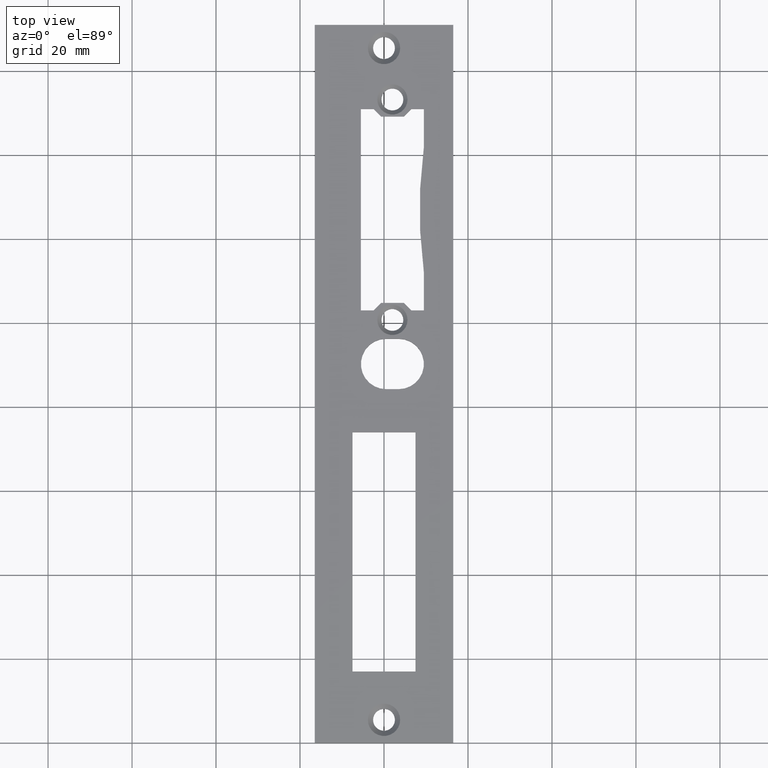
[diagram: clean part render]
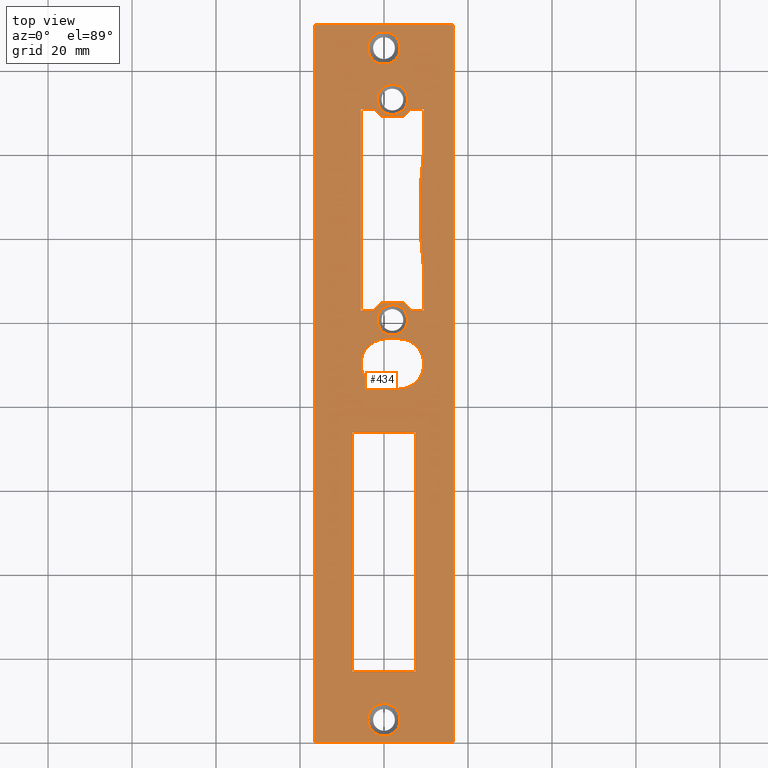
[diagram: same view with one face highlighted and labeled with its STEP entity id]
A machine part, top view. The second image highlights one B-rep face of the part: STEP entity #434.
In plain terms, the highlighted planar face has unit normal (-0, 0, 1).
Its self-contained STEP definition (entity closure, byte-faithful):
#11 = VERTEX_POINT ( 'NONE', #2658 ) ;
#13 = ORIENTED_EDGE ( 'NONE', *, *, #502, .F. ) ;
#31 = CARTESIAN_POINT ( 'NONE',  ( 3.850000000000000089, 165.5000000000000000, 3.000000000000000888 ) ) ;
#39 = DIRECTION ( 'NONE',  ( 1.000000000000000000, 0.000000000000000000, 0.000000000000000000 ) ) ;
#74 = CARTESIAN_POINT ( 'NONE',  ( 6.500000000000020428, 102.9999999999999858, 3.000000000000000888 ) ) ;
#150 = LINE ( 'NONE', #260, #8252 ) ;
#245 = VERTEX_POINT ( 'NONE', #9052 ) ;
#253 = EDGE_LOOP ( 'NONE', ( #3964 ) ) ;
#260 = CARTESIAN_POINT ( 'NONE',  ( 0.000000000000000000, 102.9999999999999858, 3.000000000000000888 ) ) ;
#261 = CARTESIAN_POINT ( 'NONE',  ( 9.500000000000019540, 0.000000000000000000, 3.000000000000000888 ) ) ;
#296 = CARTESIAN_POINT ( 'NONE',  ( 0.000000000000000000, 17.00000000000000000, 3.000000000000000888 ) ) ;
#326 = VECTOR ( 'NONE', #5329, 1000.000000000000000 ) ;
#350 = EDGE_LOOP ( 'NONE', ( #553, #4392, #7611, #6324 ) ) ;
#418 = EDGE_CURVE ( 'NONE', #7979, #7979, #897, .T. ) ;
#422 = CARTESIAN_POINT ( 'NONE',  ( 54.74999999999999289, 54.74999999999999289, 3.000000000000000888 ) ) ;
#427 = CARTESIAN_POINT ( 'NONE',  ( 4.700000000000023270, 104.7999999999999687, 3.000000000000000888 ) ) ;
#434 = ADVANCED_FACE ( 'NONE', ( #1680, #4399, #466, #4513, #3410, #6207, #4304, #5773 ), #3907, .T. ) ;
#438 = LINE ( 'NONE', #7629, #5947 ) ;
#462 = DIRECTION ( 'NONE',  ( -0.000000000000000000, 0.000000000000000000, 1.000000000000000000 ) ) ;
#466 = FACE_BOUND ( 'NONE', #253, .T. ) ;
#483 = ORIENTED_EDGE ( 'NONE', *, *, #2848, .F. ) ;
#492 = CARTESIAN_POINT ( 'NONE',  ( 0.000000000000000000, 96.24999999999998579, 3.000000000000000888 ) ) ;
#502 = EDGE_CURVE ( 'NONE', #8906, #1313, #8886, .T. ) ;
#508 = EDGE_CURVE ( 'NONE', #9221, #7424, #7430, .T. ) ;
#519 = CARTESIAN_POINT ( 'NONE',  ( -0.7000000000000061728, 149.2000000000000171, 3.000000000000000888 ) ) ;
#530 = CARTESIAN_POINT ( 'NONE',  ( 3.500000000000017319, 84.25000000000000000, 3.000000000000000888 ) ) ;
#553 = ORIENTED_EDGE ( 'NONE', *, *, #4359, .F. ) ;
#576 = LINE ( 'NONE', #4905, #8901 ) ;
#580 = DIRECTION ( 'NONE',  ( -1.217349807703023841E-16, 1.000000000000000000, 0.000000000000000000 ) ) ;
#606 = LINE ( 'NONE', #2653, #5686 ) ;
#655 = ORIENTED_EDGE ( 'NONE', *, *, #2166, .F. ) ;
#769 = LINE ( 'NONE', #6012, #326 ) ;
#829 = ORIENTED_EDGE ( 'NONE', *, *, #418, .T. ) ;
#831 = LINE ( 'NONE', #422, #1724 ) ;
#859 = DIRECTION ( 'NONE',  ( -0.000000000000000000, 0.000000000000000000, 1.000000000000000000 ) ) ;
#875 = ORIENTED_EDGE ( 'NONE', *, *, #1436, .F. ) ;
#883 = CARTESIAN_POINT ( 'NONE',  ( 7.500000000000007105, 17.00000000000000000, 3.000000000000000888 ) ) ;
#897 = CIRCLE ( 'NONE', #5338, 3.600000000000020073 ) ;
#1023 = LINE ( 'NONE', #6942, #5556 ) ;
#1130 = VERTEX_POINT ( 'NONE', #3932 ) ;
#1132 = VECTOR ( 'NONE', #6288, 1000.000000000000000 ) ;
#1133 = CARTESIAN_POINT ( 'NONE',  ( 0.5000000000000242029, 84.25000000000000000, 3.000000000000000888 ) ) ;
#1183 = EDGE_LOOP ( 'NONE', ( #8100, #2125, #7181, #6103, #6462, #5200, #4059, #655, #6175, #2666, #4161, #2736, #875, #7445 ) ) ;
#1313 = VERTEX_POINT ( 'NONE', #530 ) ;
#1320 = VERTEX_POINT ( 'NONE', #5473 ) ;
#1356 = VERTEX_POINT ( 'NONE', #3508 ) ;
#1362 = VERTEX_POINT ( 'NONE', #5643 ) ;
#1421 = CARTESIAN_POINT ( 'NONE',  ( 4.700000000000024158, 149.2000000000000171, 3.000000000000000888 ) ) ;
#1436 = EDGE_CURVE ( 'NONE', #3812, #8427, #831, .T. ) ;
#1459 = CARTESIAN_POINT ( 'NONE',  ( 3.850000000000040945, 5.500000000000000000, 3.000000000000000888 ) ) ;
#1481 = ORIENTED_EDGE ( 'NONE', *, *, #7029, .F. ) ;
#1572 = DIRECTION ( 'NONE',  ( -1.000000000000000000, 0.000000000000000000, 0.000000000000000000 ) ) ;
#1680 = FACE_BOUND ( 'NONE', #8549, .T. ) ;
#1702 = VECTOR ( 'NONE', #8629, 1000.000000000000000 ) ;
#1724 = VECTOR ( 'NONE', #1926, 1000.000000000000114 ) ;
#1763 = VERTEX_POINT ( 'NONE', #2857 ) ;
#1797 = LINE ( 'NONE', #2796, #1132 ) ;
#1804 = EDGE_CURVE ( 'NONE', #9228, #9228, #6129, .T. ) ;
#1827 = DIRECTION ( 'NONE',  ( -0.000000000000000000, 0.000000000000000000, 1.000000000000000000 ) ) ;
#1846 = EDGE_CURVE ( 'NONE', #8427, #5043, #150, .T. ) ;
#1866 = VERTEX_POINT ( 'NONE', #4504 ) ;
#1926 = DIRECTION ( 'NONE',  ( 0.7071067811865474617, -0.7071067811865474617, 0.000000000000000000 ) ) ;
#1937 = VECTOR ( 'NONE', #4128, 1000.000000000000000 ) ;
#1954 = DIRECTION ( 'NONE',  ( -0.7071067811865474617, 0.7071067811865474617, 0.000000000000000000 ) ) ;
#1982 = CARTESIAN_POINT ( 'NONE',  ( 16.50000000000000000, -2.008627182709986664E-15, 3.000000000000000888 ) ) ;
#1998 = VERTEX_POINT ( 'NONE', #5396 ) ;
#2050 = VECTOR ( 'NONE', #6145, 1000.000000000000000 ) ;
#2125 = ORIENTED_EDGE ( 'NONE', *, *, #6898, .F. ) ;
#2166 = EDGE_CURVE ( 'NONE', #1866, #8467, #5694, .T. ) ;
#2188 = CARTESIAN_POINT ( 'NONE',  ( 5.600000000000040501, 100.7500000000000000, 3.000000000000000888 ) ) ;
#2244 = VECTOR ( 'NONE', #3332, 1000.000000000000000 ) ;
#2297 = VECTOR ( 'NONE', #3483, 1000.000000000000114 ) ;
#2319 = DIRECTION ( 'NONE',  ( -1.000000000000000000, 0.000000000000000000, 0.000000000000000000 ) ) ;
#2355 = CARTESIAN_POINT ( 'NONE',  ( 0.000000000000000000, 151.0000000000000284, 3.000000000000000888 ) ) ;
#2445 = VERTEX_POINT ( 'NONE', #1459 ) ;
#2531 = ORIENTED_EDGE ( 'NONE', *, *, #5019, .T. ) ;
#2555 = CARTESIAN_POINT ( 'NONE',  ( 2.000000000000020872, 153.2500000000000000, 3.000000000000000888 ) ) ;
#2593 = CARTESIAN_POINT ( 'NONE',  ( 3.500000000000014655, 90.25000000000001421, 3.000000000000000888 ) ) ;
#2635 = DIRECTION ( 'NONE',  ( -1.217349807703023841E-16, -1.000000000000000000, 0.000000000000000000 ) ) ;
#2645 = CARTESIAN_POINT ( 'NONE',  ( -52.74999999999997158, 52.74999999999997158, 3.000000000000000888 ) ) ;
#2648 = AXIS2_PLACEMENT_3D ( 'NONE', #2555, #3994, #4671 ) ;
#2653 = CARTESIAN_POINT ( 'NONE',  ( 7.500000000000007994, 9.130123557772689781E-16, 3.000000000000000888 ) ) ;
#2658 = CARTESIAN_POINT ( 'NONE',  ( -5.499999999999980460, 151.0000000000000284, 3.000000000000000888 ) ) ;
#2666 = ORIENTED_EDGE ( 'NONE', *, *, #5717, .T. ) ;
#2736 = ORIENTED_EDGE ( 'NONE', *, *, #1846, .F. ) ;
#2796 = CARTESIAN_POINT ( 'NONE',  ( 0.000000000000000000, 171.0000000000000000, 3.000000000000000888 ) ) ;
#2811 = CARTESIAN_POINT ( 'NONE',  ( 121.5000000000008953, 127.0000000000000000, 3.000000000000000888 ) ) ;
#2848 = EDGE_CURVE ( 'NONE', #5071, #8906, #5332, .T. ) ;
#2857 = CARTESIAN_POINT ( 'NONE',  ( -2.499999999999978684, 151.0000000000000284, 3.000000000000000888 ) ) ;
#2868 = EDGE_CURVE ( 'NONE', #8465, #3128, #6002, .T. ) ;
#3023 = ORIENTED_EDGE ( 'NONE', *, *, #4538, .T. ) ;
#3089 = EDGE_CURVE ( 'NONE', #8467, #8465, #6676, .T. ) ;
#3093 = DIRECTION ( 'NONE',  ( 1.000000000000000000, 0.000000000000000000, 0.000000000000000000 ) ) ;
#3128 = VERTEX_POINT ( 'NONE', #519 ) ;
#3131 = CARTESIAN_POINT ( 'NONE',  ( 5.600000000000027178, 153.2500000000000000, 3.000000000000000888 ) ) ;
#3138 = EDGE_CURVE ( 'NONE', #8540, #9221, #606, .T. ) ;
#3332 = DIRECTION ( 'NONE',  ( -1.000000000000000000, 0.000000000000000000, 0.000000000000000000 ) ) ;
#3340 = DIRECTION ( 'NONE',  ( 1.000000000000000000, 0.000000000000000000, 0.000000000000000000 ) ) ;
#3362 = CARTESIAN_POINT ( 'NONE',  ( 0.000000000000000000, 73.99999999999994316, 3.000000000000000888 ) ) ;
#3410 = FACE_BOUND ( 'NONE', #3630, .T. ) ;
#3415 = CARTESIAN_POINT ( 'NONE',  ( 0.5000000000000258682, 90.25000000000001421, 3.000000000000000888 ) ) ;
#3434 = AXIS2_PLACEMENT_3D ( 'NONE', #3582, #5255, #3093 ) ;
#3483 = DIRECTION ( 'NONE',  ( 0.7071067811865474617, 0.7071067811865474617, 0.000000000000000000 ) ) ;
#3508 = CARTESIAN_POINT ( 'NONE',  ( -0.6999999999999825251, 104.7999999999999829, 3.000000000000000888 ) ) ;
#3515 = VECTOR ( 'NONE', #5018, 1000.000000000000000 ) ;
#3563 = CARTESIAN_POINT ( 'NONE',  ( 0.000000000000000000, 102.9999999999999858, 3.000000000000000888 ) ) ;
#3582 = CARTESIAN_POINT ( 'NONE',  ( -1.994931997373328159E-14, 165.5000000000000000, 3.000000000000000888 ) ) ;
#3630 = EDGE_LOOP ( 'NONE', ( #1481, #13, #483, #2531 ) ) ;
#3663 = VECTOR ( 'NONE', #1572, 1000.000000000000000 ) ;
#3666 = CARTESIAN_POINT ( 'NONE',  ( 9.500000000000014211, 142.0000000000000284, 3.000000000000000888 ) ) ;
#3702 = VERTEX_POINT ( 'NONE', #6001 ) ;
#3766 = CARTESIAN_POINT ( 'NONE',  ( 0.000000000000000000, 151.0000000000000284, 3.000000000000000888 ) ) ;
#3812 = VERTEX_POINT ( 'NONE', #427 ) ;
#3815 = EDGE_LOOP ( 'NONE', ( #5840 ) ) ;
#3835 = CIRCLE ( 'NONE', #8167, 3.850000000000020073 ) ;
#3877 = EDGE_CURVE ( 'NONE', #8760, #1356, #4557, .T. ) ;
#3907 = PLANE ( 'NONE',  #6313 ) ;
#3932 = CARTESIAN_POINT ( 'NONE',  ( -5.499999999999978684, 102.9999999999999858, 3.000000000000000888 ) ) ;
#3964 = ORIENTED_EDGE ( 'NONE', *, *, #6468, .T. ) ;
#3994 = DIRECTION ( 'NONE',  ( 0.000000000000000000, -0.000000000000000000, -1.000000000000000000 ) ) ;
#4059 = ORIENTED_EDGE ( 'NONE', *, *, #3089, .F. ) ;
#4072 = EDGE_CURVE ( 'NONE', #11, #1130, #7700, .T. ) ;
#4128 = DIRECTION ( 'NONE',  ( 1.217349807703022362E-16, 1.000000000000000000, 0.000000000000000000 ) ) ;
#4161 = ORIENTED_EDGE ( 'NONE', *, *, #7494, .F. ) ;
#4193 = VECTOR ( 'NONE', #4869, 1000.000000000000000 ) ;
#4232 = AXIS2_PLACEMENT_3D ( 'NONE', #2593, #462, #3340 ) ;
#4304 = FACE_BOUND ( 'NONE', #1183, .T. ) ;
#4327 = CARTESIAN_POINT ( 'NONE',  ( -5.499999999999975131, -1.987703982890080780E-16, 3.000000000000000888 ) ) ;
#4343 = DIRECTION ( 'NONE',  ( 0.000000000000000000, -0.000000000000000000, -1.000000000000000000 ) ) ;
#4359 = EDGE_CURVE ( 'NONE', #7424, #245, #1023, .T. ) ;
#4387 = VECTOR ( 'NONE', #5619, 1000.000000000000000 ) ;
#4392 = ORIENTED_EDGE ( 'NONE', *, *, #508, .F. ) ;
#4399 = FACE_BOUND ( 'NONE', #7560, .T. ) ;
#4504 = CARTESIAN_POINT ( 'NONE',  ( 9.500000000000019540, 151.0000000000000284, 3.000000000000000888 ) ) ;
#4513 = FACE_BOUND ( 'NONE', #3815, .T. ) ;
#4538 = EDGE_CURVE ( 'NONE', #8950, #3702, #1797, .T. ) ;
#4557 = LINE ( 'NONE', #2645, #2297 ) ;
#4582 = DIRECTION ( 'NONE',  ( 0.000000000000000000, -0.000000000000000000, -1.000000000000000000 ) ) ;
#4636 = DIRECTION ( 'NONE',  ( 1.000000000000000000, 0.000000000000000000, 0.000000000000000000 ) ) ;
#4666 = CARTESIAN_POINT ( 'NONE',  ( -7.500000000000000000, 73.99999999999994316, 3.000000000000000888 ) ) ;
#4671 = DIRECTION ( 'NONE',  ( 1.000000000000000000, 0.000000000000000000, 0.000000000000000000 ) ) ;
#4737 = CARTESIAN_POINT ( 'NONE',  ( 0.000000000000000000, 84.25000000000000000, 3.000000000000000888 ) ) ;
#4771 = VECTOR ( 'NONE', #7034, 1000.000000000000114 ) ;
#4775 = EDGE_CURVE ( 'NONE', #1763, #11, #5976, .T. ) ;
#4869 = DIRECTION ( 'NONE',  ( 1.000000000000000000, 0.000000000000000000, 0.000000000000000000 ) ) ;
#4905 = CARTESIAN_POINT ( 'NONE',  ( 74.25000000000001421, 74.25000000000001421, 3.000000000000000888 ) ) ;
#4982 = ORIENTED_EDGE ( 'NONE', *, *, #8501, .T. ) ;
#5018 = DIRECTION ( 'NONE',  ( 1.000000000000000000, 0.000000000000000000, 0.000000000000000000 ) ) ;
#5019 = EDGE_CURVE ( 'NONE', #5071, #1998, #5669, .T. ) ;
#5043 = VERTEX_POINT ( 'NONE', #9071 ) ;
#5071 = VERTEX_POINT ( 'NONE', #8966 ) ;
#5075 = VECTOR ( 'NONE', #8028, 1000.000000000000000 ) ;
#5089 = DIRECTION ( 'NONE',  ( 1.000000000000000000, 0.000000000000000000, 0.000000000000000000 ) ) ;
#5136 = EDGE_CURVE ( 'NONE', #3128, #1763, #576, .T. ) ;
#5165 = DIRECTION ( 'NONE',  ( 1.000000000000000000, 0.000000000000000000, 0.000000000000000000 ) ) ;
#5200 = ORIENTED_EDGE ( 'NONE', *, *, #2868, .F. ) ;
#5204 = CARTESIAN_POINT ( 'NONE',  ( -2.499999999999978684, 102.9999999999999858, 3.000000000000000888 ) ) ;
#5214 = CARTESIAN_POINT ( 'NONE',  ( 7.500000000000000000, 73.99999999999994316, 3.000000000000000888 ) ) ;
#5223 = DIRECTION ( 'NONE',  ( 1.000000000000000000, 0.000000000000000000, 0.000000000000000000 ) ) ;
#5255 = DIRECTION ( 'NONE',  ( 0.000000000000000000, -0.000000000000000000, -1.000000000000000000 ) ) ;
#5329 = DIRECTION ( 'NONE',  ( 1.000000000000000000, 0.000000000000000000, 0.000000000000000000 ) ) ;
#5332 = CIRCLE ( 'NONE', #5403, 5.999999999999991118 ) ;
#5338 = AXIS2_PLACEMENT_3D ( 'NONE', #6061, #4582, #7337 ) ;
#5396 = CARTESIAN_POINT ( 'NONE',  ( 3.500000000000015543, 96.24999999999998579, 3.000000000000000888 ) ) ;
#5403 = AXIS2_PLACEMENT_3D ( 'NONE', #3415, #1827, #4636 ) ;
#5405 = LINE ( 'NONE', #3563, #3515 ) ;
#5423 = CARTESIAN_POINT ( 'NONE',  ( 16.50000000000002132, 171.0000000000000000, 3.000000000000000888 ) ) ;
#5429 = DIRECTION ( 'NONE',  ( 1.000000000000000000, 0.000000000000000000, 0.000000000000000000 ) ) ;
#5473 = CARTESIAN_POINT ( 'NONE',  ( 9.500000000000019540, 111.9999999999999858, 3.000000000000000888 ) ) ;
#5556 = VECTOR ( 'NONE', #2635, 1000.000000000000000 ) ;
#5619 = DIRECTION ( 'NONE',  ( 0.000000000000000000, 1.000000000000000000, -0.000000000000000000 ) ) ;
#5643 = CARTESIAN_POINT ( 'NONE',  ( -16.50000000000000000, 0.000000000000000000, 3.000000000000000888 ) ) ;
#5669 = LINE ( 'NONE', #492, #7688 ) ;
#5679 = LINE ( 'NONE', #1982, #1937 ) ;
#5686 = VECTOR ( 'NONE', #580, 1000.000000000000000 ) ;
#5694 = LINE ( 'NONE', #3766, #3663 ) ;
#5715 = DIRECTION ( 'NONE',  ( 3.614007241618344826E-17, -1.000000000000000000, 0.000000000000000000 ) ) ;
#5717 = EDGE_CURVE ( 'NONE', #7866, #1320, #9257, .T. ) ;
#5773 = FACE_OUTER_BOUND ( 'NONE', #8580, .T. ) ;
#5840 = ORIENTED_EDGE ( 'NONE', *, *, #1804, .T. ) ;
#5850 = CARTESIAN_POINT ( 'NONE',  ( -16.50000000000000000, -2.008627182709986664E-15, 3.000000000000000888 ) ) ;
#5947 = VECTOR ( 'NONE', #6210, 1000.000000000000000 ) ;
#5955 = LINE ( 'NONE', #261, #6524 ) ;
#5976 = LINE ( 'NONE', #2355, #5075 ) ;
#5988 = VECTOR ( 'NONE', #5715, 1000.000000000000000 ) ;
#6001 = CARTESIAN_POINT ( 'NONE',  ( -16.50000000000002132, 171.0000000000000000, 3.000000000000000888 ) ) ;
#6002 = LINE ( 'NONE', #8212, #6247 ) ;
#6012 = CARTESIAN_POINT ( 'NONE',  ( 0.000000000000000000, 104.7999999999999829, 3.000000000000000888 ) ) ;
#6061 = CARTESIAN_POINT ( 'NONE',  ( 2.000000000000020872, 100.7500000000000000, 3.000000000000000888 ) ) ;
#6103 = ORIENTED_EDGE ( 'NONE', *, *, #4775, .F. ) ;
#6129 = CIRCLE ( 'NONE', #3434, 3.850000000000020073 ) ;
#6145 = DIRECTION ( 'NONE',  ( 1.000000000000000000, 0.000000000000000000, 0.000000000000000000 ) ) ;
#6175 = ORIENTED_EDGE ( 'NONE', *, *, #9104, .F. ) ;
#6207 = FACE_BOUND ( 'NONE', #350, .T. ) ;
#6210 = DIRECTION ( 'NONE',  ( 1.000000000000000000, -6.437647128062932015E-33, 0.000000000000000000 ) ) ;
#6247 = VECTOR ( 'NONE', #2319, 1000.000000000000000 ) ;
#6288 = DIRECTION ( 'NONE',  ( -1.000000000000000000, 0.000000000000000000, 0.000000000000000000 ) ) ;
#6313 = AXIS2_PLACEMENT_3D ( 'NONE', #7321, #859, #5223 ) ;
#6324 = ORIENTED_EDGE ( 'NONE', *, *, #8566, .F. ) ;
#6399 = AXIS2_PLACEMENT_3D ( 'NONE', #2811, #6899, #39 ) ;
#6462 = ORIENTED_EDGE ( 'NONE', *, *, #5136, .F. ) ;
#6468 = EDGE_CURVE ( 'NONE', #2445, #2445, #3835, .T. ) ;
#6524 = VECTOR ( 'NONE', #6774, 1000.000000000000000 ) ;
#6535 = CARTESIAN_POINT ( 'NONE',  ( 6.500000000000019540, 151.0000000000000284, 3.000000000000000888 ) ) ;
#6564 = CIRCLE ( 'NONE', #2648, 3.600000000000005862 ) ;
#6573 = CARTESIAN_POINT ( 'NONE',  ( 2.081668171172168513E-14, 5.500000000000000000, 3.000000000000000888 ) ) ;
#6676 = LINE ( 'NONE', #6961, #4771 ) ;
#6774 = DIRECTION ( 'NONE',  ( 0.000000000000000000, 1.000000000000000000, -0.000000000000000000 ) ) ;
#6785 = LINE ( 'NONE', #5850, #1702 ) ;
#6898 = EDGE_CURVE ( 'NONE', #1130, #8760, #5405, .T. ) ;
#6899 = DIRECTION ( 'NONE',  ( 0.000000000000000000, 0.000000000000000000, 1.000000000000000000 ) ) ;
#6942 = CARTESIAN_POINT ( 'NONE',  ( -7.500000000000007994, 9.130123557772689781E-16, 3.000000000000000888 ) ) ;
#6961 = CARTESIAN_POINT ( 'NONE',  ( -72.25000000000000000, 72.25000000000000000, 3.000000000000000888 ) ) ;
#7029 = EDGE_CURVE ( 'NONE', #1313, #1998, #8654, .T. ) ;
#7034 = DIRECTION ( 'NONE',  ( -0.7071067811865474617, -0.7071067811865474617, 0.000000000000000000 ) ) ;
#7181 = ORIENTED_EDGE ( 'NONE', *, *, #4072, .F. ) ;
#7234 = VERTEX_POINT ( 'NONE', #7833 ) ;
#7321 = CARTESIAN_POINT ( 'NONE',  ( 0.000000000000000000, 0.000000000000000000, 3.000000000000000888 ) ) ;
#7337 = DIRECTION ( 'NONE',  ( 1.000000000000000000, 0.000000000000000000, 0.000000000000000000 ) ) ;
#7406 = ORIENTED_EDGE ( 'NONE', *, *, #8589, .T. ) ;
#7424 = VERTEX_POINT ( 'NONE', #4666 ) ;
#7430 = LINE ( 'NONE', #3362, #2244 ) ;
#7445 = ORIENTED_EDGE ( 'NONE', *, *, #7554, .F. ) ;
#7494 = EDGE_CURVE ( 'NONE', #5043, #1320, #5955, .T. ) ;
#7554 = EDGE_CURVE ( 'NONE', #1356, #3812, #769, .T. ) ;
#7560 = EDGE_LOOP ( 'NONE', ( #829 ) ) ;
#7611 = ORIENTED_EDGE ( 'NONE', *, *, #3138, .F. ) ;
#7629 = CARTESIAN_POINT ( 'NONE',  ( -6.838144590000392414E-64, -1.062211776130383892E-31, 3.000000000000000888 ) ) ;
#7672 = EDGE_CURVE ( 'NONE', #1362, #7234, #438, .T. ) ;
#7688 = VECTOR ( 'NONE', #5429, 1000.000000000000000 ) ;
#7700 = LINE ( 'NONE', #4327, #5988 ) ;
#7784 = ORIENTED_EDGE ( 'NONE', *, *, #7672, .T. ) ;
#7833 = CARTESIAN_POINT ( 'NONE',  ( 16.50000000000000000, -2.124423552260767784E-31, 3.000000000000000888 ) ) ;
#7866 = VERTEX_POINT ( 'NONE', #3666 ) ;
#7979 = VERTEX_POINT ( 'NONE', #2188 ) ;
#7990 = ORIENTED_EDGE ( 'NONE', *, *, #8618, .T. ) ;
#8028 = DIRECTION ( 'NONE',  ( -1.000000000000000000, 0.000000000000000000, 0.000000000000000000 ) ) ;
#8100 = ORIENTED_EDGE ( 'NONE', *, *, #3877, .F. ) ;
#8167 = AXIS2_PLACEMENT_3D ( 'NONE', #6573, #4343, #5089 ) ;
#8212 = CARTESIAN_POINT ( 'NONE',  ( 0.000000000000000000, 149.2000000000000171, 3.000000000000000888 ) ) ;
#8252 = VECTOR ( 'NONE', #5165, 1000.000000000000000 ) ;
#8318 = LINE ( 'NONE', #9194, #4387 ) ;
#8427 = VERTEX_POINT ( 'NONE', #74 ) ;
#8465 = VERTEX_POINT ( 'NONE', #1421 ) ;
#8467 = VERTEX_POINT ( 'NONE', #6535 ) ;
#8501 = EDGE_CURVE ( 'NONE', #3702, #1362, #6785, .T. ) ;
#8540 = VERTEX_POINT ( 'NONE', #883 ) ;
#8549 = EDGE_LOOP ( 'NONE', ( #7406 ) ) ;
#8566 = EDGE_CURVE ( 'NONE', #245, #8540, #8688, .T. ) ;
#8580 = EDGE_LOOP ( 'NONE', ( #7784, #7990, #3023, #4982 ) ) ;
#8589 = EDGE_CURVE ( 'NONE', #9107, #9107, #6564, .T. ) ;
#8618 = EDGE_CURVE ( 'NONE', #7234, #8950, #5679, .T. ) ;
#8629 = DIRECTION ( 'NONE',  ( 1.217349807703022362E-16, -1.000000000000000000, 0.000000000000000000 ) ) ;
#8654 = CIRCLE ( 'NONE', #4232, 5.999999999999991118 ) ;
#8688 = LINE ( 'NONE', #296, #2050 ) ;
#8760 = VERTEX_POINT ( 'NONE', #5204 ) ;
#8886 = LINE ( 'NONE', #4737, #4193 ) ;
#8901 = VECTOR ( 'NONE', #1954, 1000.000000000000114 ) ;
#8906 = VERTEX_POINT ( 'NONE', #1133 ) ;
#8950 = VERTEX_POINT ( 'NONE', #5423 ) ;
#8966 = CARTESIAN_POINT ( 'NONE',  ( 0.5000000000000258682, 96.24999999999998579, 3.000000000000000888 ) ) ;
#9052 = CARTESIAN_POINT ( 'NONE',  ( -7.500000000000007105, 17.00000000000000000, 3.000000000000000888 ) ) ;
#9071 = CARTESIAN_POINT ( 'NONE',  ( 9.500000000000019540, 102.9999999999999858, 3.000000000000000888 ) ) ;
#9104 = EDGE_CURVE ( 'NONE', #7866, #1866, #8318, .T. ) ;
#9107 = VERTEX_POINT ( 'NONE', #3131 ) ;
#9194 = CARTESIAN_POINT ( 'NONE',  ( 9.500000000000019540, 0.000000000000000000, 3.000000000000000888 ) ) ;
#9221 = VERTEX_POINT ( 'NONE', #5214 ) ;
#9228 = VERTEX_POINT ( 'NONE', #31 ) ;
#9257 = CIRCLE ( 'NONE', #6399, 113.0000000000008669 ) ;